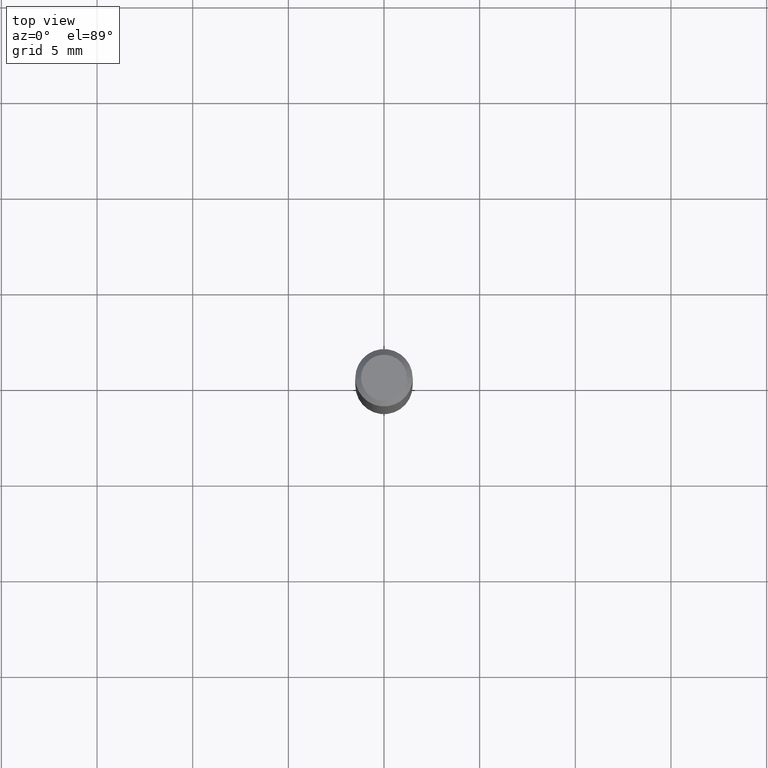
[diagram: clean part render]
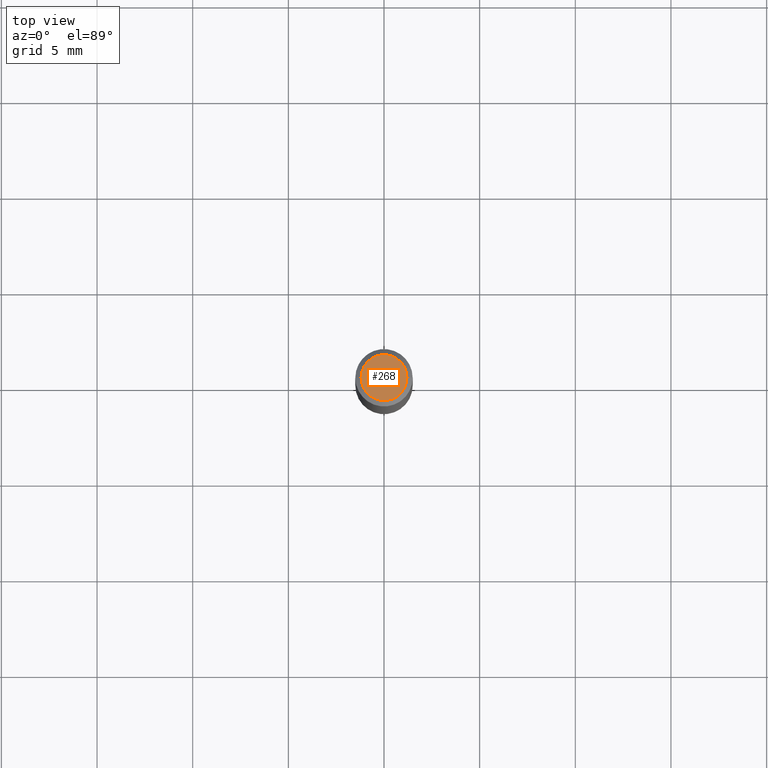
[diagram: same view with one face highlighted and labeled with its STEP entity id]
A machine part, top view. The second image highlights one B-rep face of the part: STEP entity #268.
In plain terms, the highlighted planar face has unit normal (0, -0, -1).
Its self-contained STEP definition (entity closure, byte-faithful):
#69 = EDGE_CURVE ( 'NONE', #470, #168, #404, .T. ) ;
#95 = CARTESIAN_POINT ( 'NONE',  ( 8.265746106709734507E-48, -1.180129479067563789E-33, -3.380025165646692144E-19 ) ) ;
#98 = DIRECTION ( 'NONE',  ( 2.438088387897960049E-29, -3.491481338843145188E-15, -1.000000000000000000 ) ) ;
#116 = AXIS2_PLACEMENT_3D ( 'NONE', #347, #385, #159 ) ;
#118 = AXIS2_PLACEMENT_3D ( 'NONE', #95, #182, #283 ) ;
#133 = PLANE ( 'NONE',  #242 ) ;
#134 = EDGE_LOOP ( 'NONE', ( #483, #355 ) ) ;
#159 = DIRECTION ( 'NONE',  ( 1.000000000000000000, -6.982962677686266711E-15, 4.876185090822587894E-29 ) ) ;
#168 = VERTEX_POINT ( 'NONE', #303 ) ;
#171 = CARTESIAN_POINT ( 'NONE',  ( 4.132873053354867254E-48, -5.900647395337818946E-34, -1.690012582823346072E-19 ) ) ;
#182 = DIRECTION ( 'NONE',  ( -2.445468806185136597E-29, 3.491481338843145583E-15, 1.000000000000000000 ) ) ;
#242 = AXIS2_PLACEMENT_3D ( 'NONE', #171, #98, #329 ) ;
#268 = ADVANCED_FACE ( 'NONE', ( #289 ), #133, .F. ) ;
#283 = DIRECTION ( 'NONE',  ( 1.000000000000000000, -6.982962677686266711E-15, 4.876185090822587894E-29 ) ) ;
#289 = FACE_OUTER_BOUND ( 'NONE', #134, .T. ) ;
#303 = CARTESIAN_POINT ( 'NONE',  ( 0.04724000000000000421, -3.852183633974369345E-16, -3.380025165621689721E-19 ) ) ;
#329 = DIRECTION ( 'NONE',  ( -1.000000000000000000, 6.982962677686265922E-15, -4.876176775795935793E-29 ) ) ;
#347 = CARTESIAN_POINT ( 'NONE',  ( 8.265746106709734507E-48, -1.180129479067563789E-33, -3.380025165646692144E-19 ) ) ;
#351 = EDGE_CURVE ( 'NONE', #168, #470, #465, .T. ) ;
#355 = ORIENTED_EDGE ( 'NONE', *, *, #351, .T. ) ;
#385 = DIRECTION ( 'NONE',  ( -2.445468806185136597E-29, 3.491481338843145583E-15, 1.000000000000000000 ) ) ;
#396 = CARTESIAN_POINT ( 'NONE',  ( -0.04724000000000000421, 3.504923541997677355E-16, -3.380025165670481712E-19 ) ) ;
#404 = CIRCLE ( 'NONE', #116, 0.04724000000000000421 ) ;
#465 = CIRCLE ( 'NONE', #118, 0.04724000000000000421 ) ;
#470 = VERTEX_POINT ( 'NONE', #396 ) ;
#483 = ORIENTED_EDGE ( 'NONE', *, *, #69, .T. ) ;